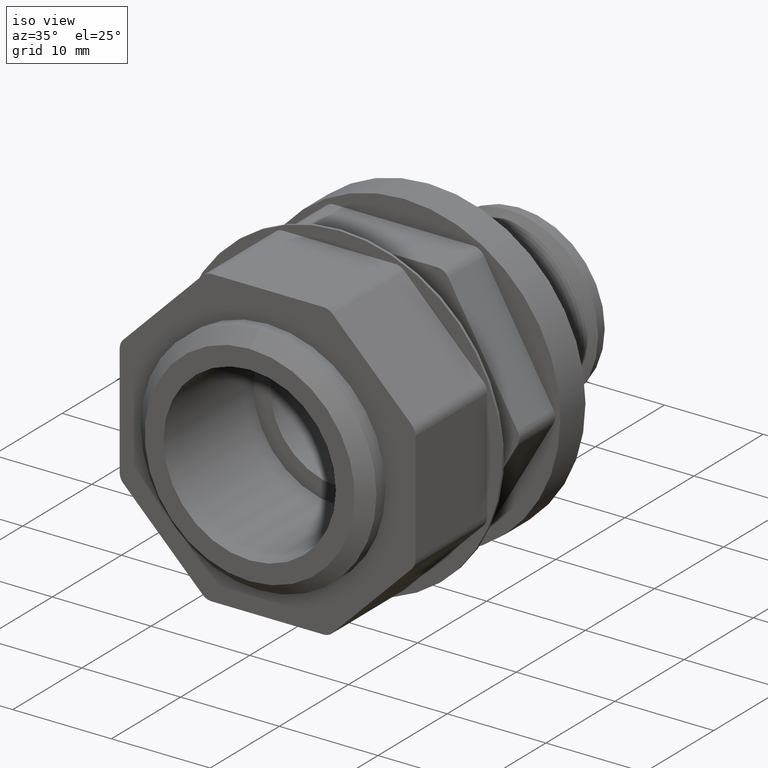
[diagram: clean part render]
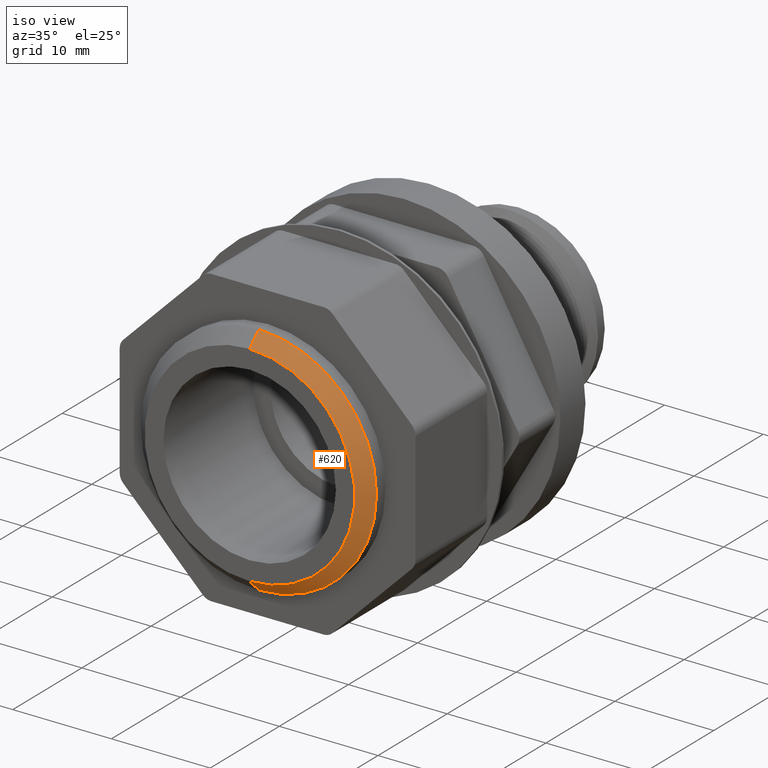
[diagram: same view with one face highlighted and labeled with its STEP entity id]
A machine part, iso view. The second image highlights one B-rep face of the part: STEP entity #620.
In plain terms, the highlighted conical surface has half-angle 45 deg.
Its self-contained STEP definition (entity closure, byte-faithful):
#538 = ORIENTED_EDGE ( 'NONE', *, *, #539, .T. ) ;
#539 = EDGE_CURVE ( 'NONE', #540, #541, #1672, .T. ) ;
#540 = VERTEX_POINT ( 'NONE', #1667 ) ;
#541 = VERTEX_POINT ( 'NONE', #1665 ) ;
#542 = ORIENTED_EDGE ( 'NONE', *, *, #543, .T. ) ;
#543 = EDGE_CURVE ( 'NONE', #541, #564, #1729, .T. ) ;
#562 = EDGE_CURVE ( 'NONE', #563, #564, #1762, .T. ) ;
#563 = VERTEX_POINT ( 'NONE', #1752 ) ;
#564 = VERTEX_POINT ( 'NONE', #1751 ) ;
#572 = ORIENTED_EDGE ( 'NONE', *, *, #562, .F. ) ;
#573 = ORIENTED_EDGE ( 'NONE', *, *, #574, .F. ) ;
#574 = EDGE_CURVE ( 'NONE', #540, #563, #1738, .T. ) ;
#620 = ADVANCED_FACE ( 'NONE', ( #1840 ), #1838, .T. ) ;
#621 = EDGE_LOOP ( 'NONE', ( #538, #542, #572, #573 ) ) ;
#1665 = CARTESIAN_POINT ( 'NONE',  ( 5.443555022209981000E-017, 0.0000000000000000000, -0.4189999999999995400 ) ) ;
#1667 = CARTESIAN_POINT ( 'NONE',  ( 0.0000000000000000000, 0.0000000000000000000, 0.4189999999999995400 ) ) ;
#1668 = DIRECTION ( 'NONE',  ( 0.0000000000000000000, 0.0000000000000000000, 1.000000000000000000 ) ) ;
#1669 = DIRECTION ( 'NONE',  ( -0.0000000000000000000, 1.000000000000000000, -0.0000000000000000000 ) ) ;
#1670 = CARTESIAN_POINT ( 'NONE',  ( 0.0000000000000000000, 0.0000000000000000000, 0.0000000000000000000 ) ) ;
#1671 = AXIS2_PLACEMENT_3D ( 'NONE', #1670, #1669, #1668 ) ;
#1672 = CIRCLE ( 'NONE', #1671, 0.4189999999999995400 ) ;
#1726 = DIRECTION ( 'NONE',  ( 8.659560562354944000E-017, 0.7071067811865465700, -0.7071067811865484600 ) ) ;
#1727 = VECTOR ( 'NONE', #1726, 39.37007874015748100 ) ;
#1728 = CARTESIAN_POINT ( 'NONE',  ( 5.755839955992557200E-017, 0.05100000000000008700, -0.4699999999999997500 ) ) ;
#1729 = LINE ( 'NONE', #1728, #1727 ) ;
#1735 = DIRECTION ( 'NONE',  ( 0.0000000000000000000, 0.7071067811865465700, 0.7071067811865484600 ) ) ;
#1736 = VECTOR ( 'NONE', #1735, 39.37007874015748100 ) ;
#1737 = CARTESIAN_POINT ( 'NONE',  ( 0.0000000000000000000, 0.05100000000000008700, 0.4699999999999997500 ) ) ;
#1738 = LINE ( 'NONE', #1737, #1736 ) ;
#1751 = CARTESIAN_POINT ( 'NONE',  ( 5.755839955992557200E-017, 0.05100000000000008700, -0.4699999999999997500 ) ) ;
#1752 = CARTESIAN_POINT ( 'NONE',  ( 0.0000000000000000000, 0.05100000000000008700, 0.4699999999999997500 ) ) ;
#1753 = DIRECTION ( 'NONE',  ( 0.0000000000000000000, 0.0000000000000000000, 1.000000000000000000 ) ) ;
#1754 = DIRECTION ( 'NONE',  ( -0.0000000000000000000, 1.000000000000000000, -0.0000000000000000000 ) ) ;
#1755 = CARTESIAN_POINT ( 'NONE',  ( 0.0000000000000000000, 0.05100000000000008700, 0.0000000000000000000 ) ) ;
#1756 = AXIS2_PLACEMENT_3D ( 'NONE', #1755, #1754, #1753 ) ;
#1762 = CIRCLE ( 'NONE', #1756, 0.4699999999999997500 ) ;
#1834 = DIRECTION ( 'NONE',  ( 0.0000000000000000000, 0.0000000000000000000, 1.000000000000000000 ) ) ;
#1835 = DIRECTION ( 'NONE',  ( -0.0000000000000000000, 1.000000000000000000, -0.0000000000000000000 ) ) ;
#1836 = CARTESIAN_POINT ( 'NONE',  ( 0.0000000000000000000, 0.05100000000000008700, 0.0000000000000000000 ) ) ;
#1837 = AXIS2_PLACEMENT_3D ( 'NONE', #1836, #1835, #1834 ) ;
#1838 = CONICAL_SURFACE ( 'NONE', #1837, 0.4699999999999997500, 0.7853981633974496100 ) ;
#1840 = FACE_OUTER_BOUND ( 'NONE', #621, .T. ) ;